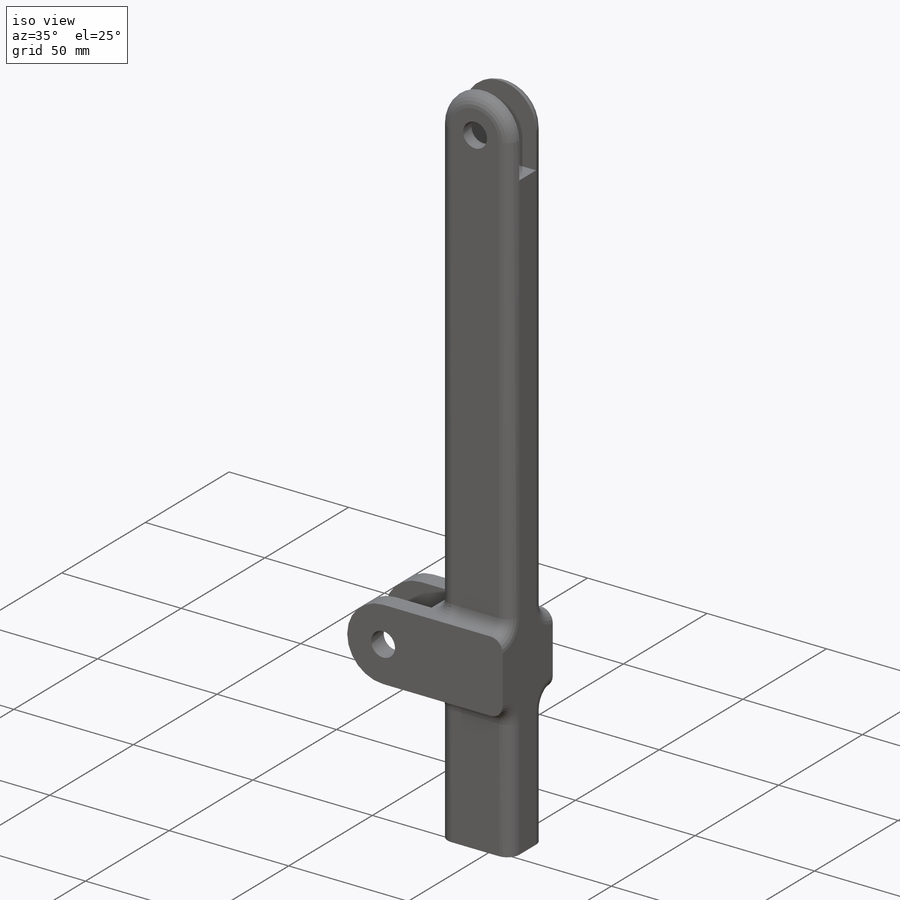
[diagram: iso view]
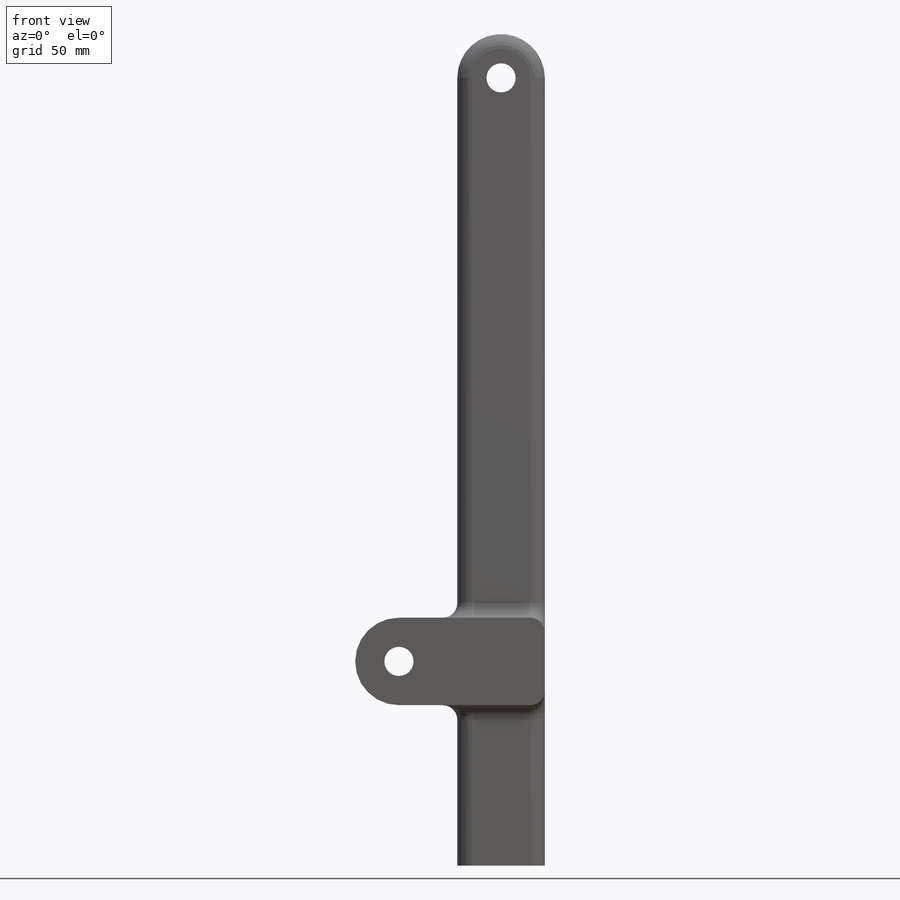
[diagram: front view]
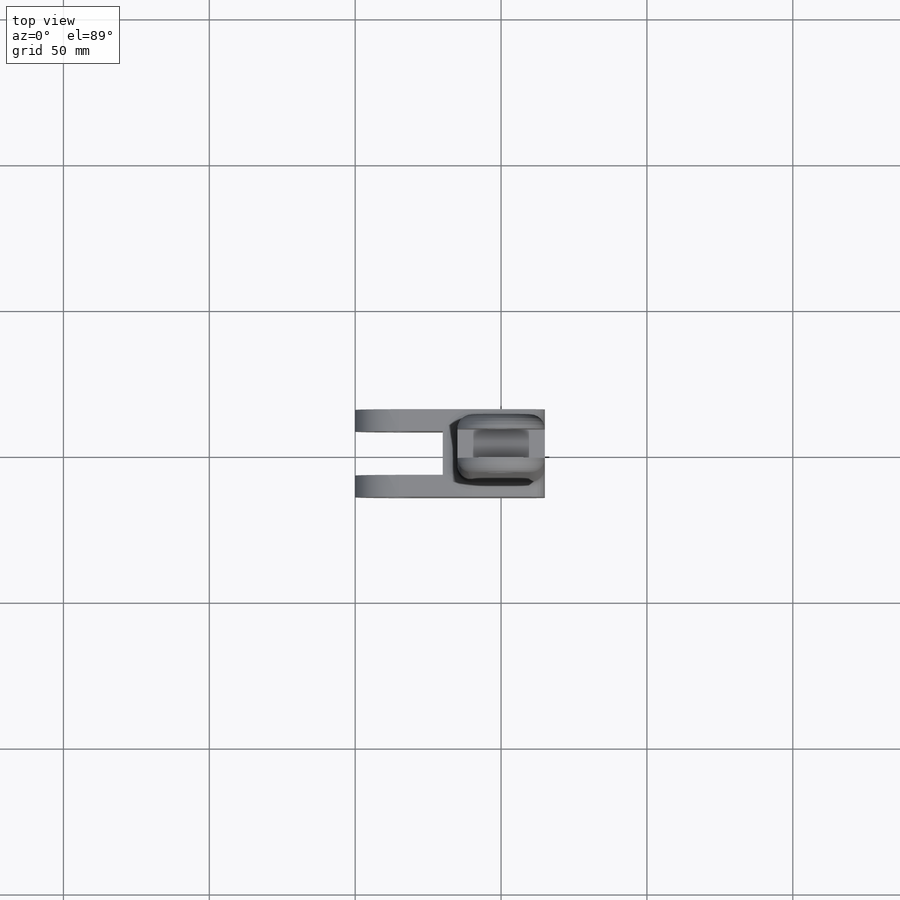
[diagram: top view]
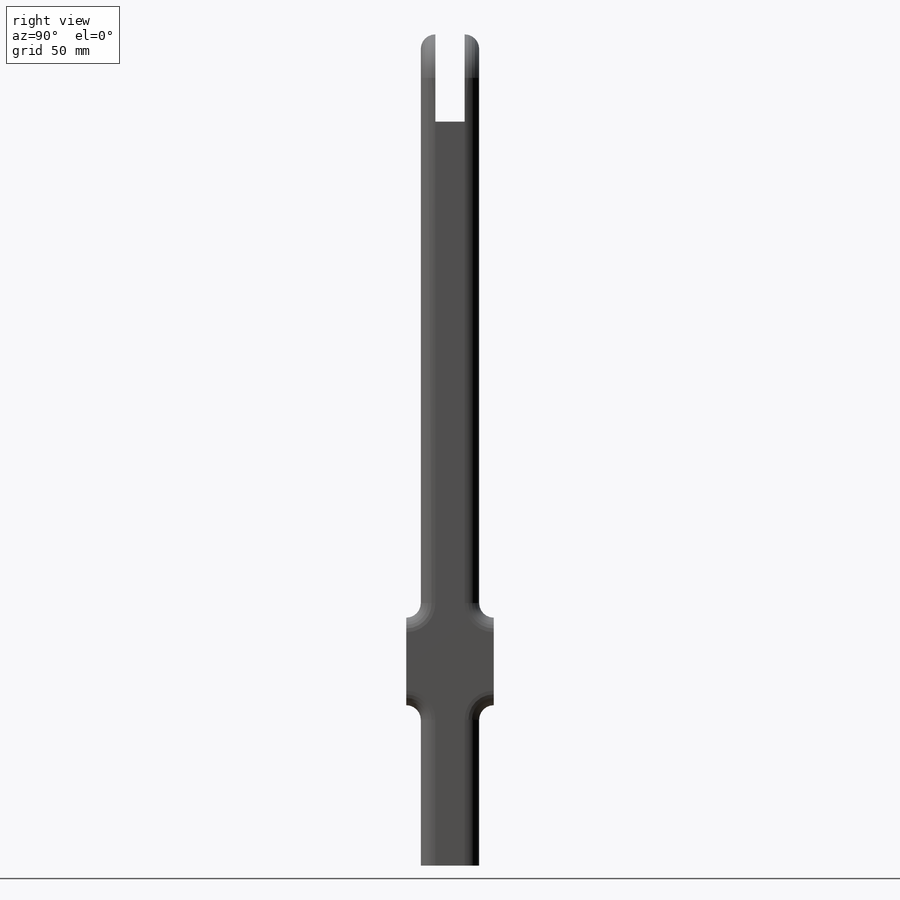
[diagram: right view]
SOLIDWORKS PART (.sldprt)
format: sldprt  version: not decoded by parser v0  size: 259,072 bytes
history: native  units: mm
features: sketch x4, extrude x2, cut_extrude x2, material x1, fillet x1 (+11 scaffold rows collapsed)
feature tree (21):
  scaffold x11  (default folders/planes/origin — collapsed)
  material  "6063-T5"
  sketch  "Sketch2"  dims[c1.D1=30.0mm c1.D2=10.0mm c1.D4=~6.927461mm c1.D5=30.0mm c1.D6=10.0mm c1.D3=270.0mm c2.D4=20.0mm c2.D7=200.0mm c2.D8=30.0mm]
  extrude  "Boss-Extrude1"  Depth=20mm
  extrude  "Boss-Extrude2"  [1 undecoded]
  sketch  "Sketch2<3>"  dims[D1=30.0mm]
  sketch  "Sketch3"  dims[D1=~17.767725mm]
  cut_extrude  "Cut-Extrude1"  Depth=15mm
  fillet  "Fillet1"  Radius=5mm
  cut_extrude  "Cut-Extrude2"  [1 undecoded]
  sketch  "Sketch3<4>"  dims[D1=10.0mm]
decode coverage: 7 of 9 modeling features carry decoded parameters
note: ~ marks probable driven/reference dimensions
note: 2 parameter values undecoded
note: suppression state not decoded; provenance and decode notes live in map.json
